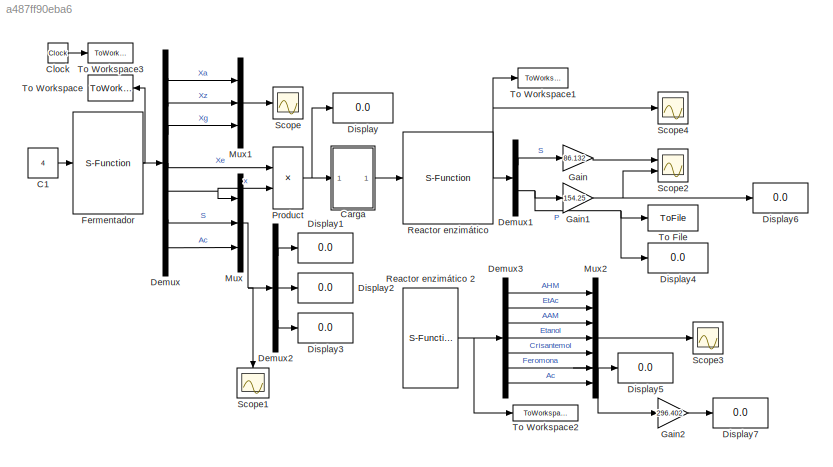
MODEL slx_a487ff90eba6
KIND model
CONFIG AbsTol = auto
CONFIG EnableMultiTasking = off
CONFIG FixedStep = auto
CONFIG MaxStep = auto
CONFIG MinStep = auto
CONFIG RelTol = 1e-3
CONFIG SampleTimeConstraint = Unconstrained
CONFIG SolverName = ode23s
CONFIG StartTime = 0.0
CONFIG StopTime = 121
BLOCK [Constant] C1
  Value = 4
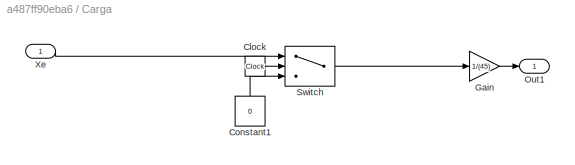
BLOCK [SubSystem] Carga
  Ports = [1, 1]
  RequestExecContextInheritance = off
BLOCK [Clock] Carga/Clock
BLOCK [Constant] Carga/Constant1
  NameLocation = right
  Value = 0
BLOCK [Gain] Carga/Gain
  Gain = 1/(45)
BLOCK [Outport] Carga/Out1
BLOCK [Switch] Carga/Switch
  Criteria = u2 > Threshold
  InputSameDT = off
  SaturateOnIntegerOverflow = off
  Threshold = 14
BLOCK [Inport] Carga/Xe
BLOCK [Clock] Clock
BLOCK [Demux] Demux
  Outputs = 7
  Ports = [1, 7]
BLOCK [Demux] Demux1
  Outputs = 2
  Ports = [1, 2]
BLOCK [Demux] Demux2
  Outputs = 3
  Ports = [1, 3]
BLOCK [Demux] Demux3
  Outputs = 7
  Ports = [1, 7]
BLOCK [Display] Display
  Decimation = 1
  Ports = [1]
BLOCK [Display] Display1
  Decimation = 1
  Ports = [1]
BLOCK [Display] Display2
  Decimation = 1
  Ports = [1]
BLOCK [Display] Display3
  Decimation = 1
  Ports = [1]
BLOCK [Display] Display4
  Decimation = 1
  Ports = [1]
BLOCK [Display] Display5
  Decimation = 1
  Ports = [1]
BLOCK [Display] Display6
  Decimation = 1
  Ports = [1]
BLOCK [Display] Display7
  Decimation = 1
  Ports = [1]
BLOCK [S-Function] Fermentador
  EnableBusSupport = off
  FunctionName = reactor_proteina
  Ports = [1, 1]
  SFcnIsStateOwnerBlock = off
  SFunctionDeploymentMode = off
BLOCK [Gain] Gain
  Gain = 86.132
BLOCK [Gain] Gain1
  Gain = 154.25
BLOCK [Gain] Gain2
  Gain = 296.402
BLOCK [Mux] Mux
  DisplayOption = bar
  Inputs = 3
  Ports = [3, 1]
BLOCK [Mux] Mux1
  DisplayOption = bar
  Inputs = 3
  Ports = [3, 1]
BLOCK [Mux] Mux2
  DisplayOption = bar
  Inputs = 7
  Ports = [7, 1]
BLOCK [Product] Product
  Ports = [2, 1]
BLOCK [S-Function] Reactor enzimático
  EnableBusSupport = off
  FunctionName = reactor_enzimatico
  Ports = [1, 1]
  SFcnIsStateOwnerBlock = off
  SFunctionDeploymentMode = off
BLOCK [S-Function] Reactor enzimático 2
  EnableBusSupport = off
  FunctionName = reacR1
  Ports = [0, 1]
  SFcnIsStateOwnerBlock = off
  SFunctionDeploymentMode = off
BLOCK [Scope] Scope
  Floating = off
  NumInputPorts = 1
  Ports = [1]
  ScopeSpecificationString = Simulink.scopes.TimeScopeBlockCfg('CurrentConfiguration', extmgr.ConfigurationSet(extmgr.Configuration('Core','General UI',true),extmgr.Configuration('Core','Source UI',true),extmgr.Configuration('Sources','WiredSimulink',true),extmgr.Configuration('Visuals','Time Domain',true,'SerializedDisplays',{struct('MinYLimReal','-0.09757','MaxYLimReal','0.87831','YLabelReal','','MinYLimMag','0.00000','MaxY...<+1361ch>
BLOCK [Scope] Scope1
  Floating = off
  NameLocation = left
  NumInputPorts = 1
  Ports = [1]
  ScopeSpecificationString = Simulink.scopes.TimeScopeBlockCfg('CurrentConfiguration', extmgr.ConfigurationSet(extmgr.Configuration('Core','General UI',true),extmgr.Configuration('Core','Source UI',true),extmgr.Configuration('Sources','WiredSimulink',true,'DataLoggingVariableName','ScopeData2'),extmgr.Configuration('Visuals','Time Domain',true,'SerializedDisplays',{struct('MinYLimReal','-0.61538','MaxYLimReal','19.00000','YLa...<+1421ch>
BLOCK [Scope] Scope2
  Floating = off
  NumInputPorts = 2
  Ports = [2]
  ScopeSpecificationString = Simulink.scopes.TimeScopeBlockCfg('CurrentConfiguration', extmgr.ConfigurationSet(extmgr.Configuration('Core','General UI',true),extmgr.Configuration('Core','Source UI',true),extmgr.Configuration('Sources','WiredSimulink',true,'DataLoggingVariableName','ScopeData1'),extmgr.Configuration('Visuals','Time Domain',true,'SerializedDisplays',{struct('MinYLimReal','-0.75365','MaxYLimReal','6.7829','YLabe...<+2076ch>
BLOCK [Scope] Scope3
  Floating = off
  NumInputPorts = 1
  Ports = [1]
  ScopeSpecificationString = Simulink.scopes.TimeScopeBlockCfg('CurrentConfiguration', extmgr.ConfigurationSet(extmgr.Configuration('Core','General UI',true),extmgr.Configuration('Core','Source UI',true),extmgr.Configuration('Sources','WiredSimulink',true,'DataLoggingVariableName','ScopeData3'),extmgr.Configuration('Visuals','Time Domain',true,'SerializedDisplays',{struct('MinYLimReal','-0.0125','MaxYLimReal','0.1125','YLabel...<+1664ch>
BLOCK [Scope] Scope4
  Floating = off
  NumInputPorts = 1
  Ports = [1]
  ScopeSpecificationString = Simulink.scopes.TimeScopeBlockCfg('CurrentConfiguration', extmgr.ConfigurationSet(extmgr.Configuration('Core','General UI',true),extmgr.Configuration('Core','Source UI',true),extmgr.Configuration('Sources','WiredSimulink',true,'DataLoggingVariableName','ScopeData1'),extmgr.Configuration('Visuals','Time Domain',true,'SerializedDisplays',{struct('MinYLimReal','-0.00875','MaxYLimReal','0.07875','YLab...<+1431ch>
BLOCK [ToFile] To File
  Filename = cris0.mat
  Ports = [1]
BLOCK [ToWorkspace] To Workspace
  FixptAsFi = on
  MaxDataPoints = inf
  NameLocation = top
  Ports = [1]
  SampleTime = -1
  VariableName = reac1
BLOCK [ToWorkspace] To Workspace1
  FixptAsFi = on
  MaxDataPoints = inf
  Ports = [1]
  SampleTime = -1
  VariableName = reac2
BLOCK [ToWorkspace] To Workspace2
  FixptAsFi = on
  MaxDataPoints = inf
  Ports = [1]
  SampleTime = -1
  VariableName = reac3
BLOCK [ToWorkspace] To Workspace3
  FixptAsFi = on
  MaxDataPoints = inf
  Ports = [1]
  SampleTime = -1
  VariableName = time
LINE C1:1 -> Fermentador:1
LINE Carga/Clock:1 -> Carga/Switch:2
LINE Carga/Constant1:1 -> Carga/Switch:3
LINE Carga/Gain:1 -> Carga/Out1:1
LINE Carga/Switch:1 -> Carga/Gain:1
LINE Carga/Xe:1 -> Carga/Switch:1
LINE Carga:1 -> Reactor enzimático:1
LINE Clock:1 -> To Workspace3:1
LINE Demux1:1 -> Gain:1
NET Demux1:2 -> Display4:1, Gain1:1, To File:1
LINE Demux2:1 -> Display1:1
LINE Demux2:2 -> Display2:1
LINE Demux2:3 -> Display3:1
LINE Demux3:1 -> Mux2:1
LINE Demux3:2 -> Mux2:2
LINE Demux3:3 -> Mux2:3
LINE Demux3:4 -> Mux2:4
LINE Demux3:5 -> Mux2:5
NET Demux3:6 -> Display5:1, Gain2:1, Mux2:6
LINE Demux3:7 -> Mux2:7
LINE Demux:1 -> Mux1:1
LINE Demux:2 -> Mux1:2
LINE Demux:3 -> Mux1:3
LINE Demux:4 -> Product:1
NET Demux:5 -> Mux:1, Product:2
LINE Demux:6 -> Mux:2
LINE Demux:7 -> Mux:3
NET Fermentador:1 -> Demux:1, To Workspace:1
NET Gain1:1 -> Display6:1, Scope2:2
LINE Gain2:1 -> Display7:1
LINE Gain:1 -> Scope2:1
LINE Mux1:1 -> Scope:1
LINE Mux2:1 -> Scope3:1
NET Mux:1 -> Demux2:1, Scope1:1
NET Product:1 -> Carga:1, Display:1
NET Reactor enzimático 2:1 -> Demux3:1, To Workspace2:1
NET Reactor enzimático:1 -> Demux1:1, Scope4:1, To Workspace1:1
note: NET lines group one-source signal fan-out (src -> all destinations, sorted); 1:1 wires keep LINE
